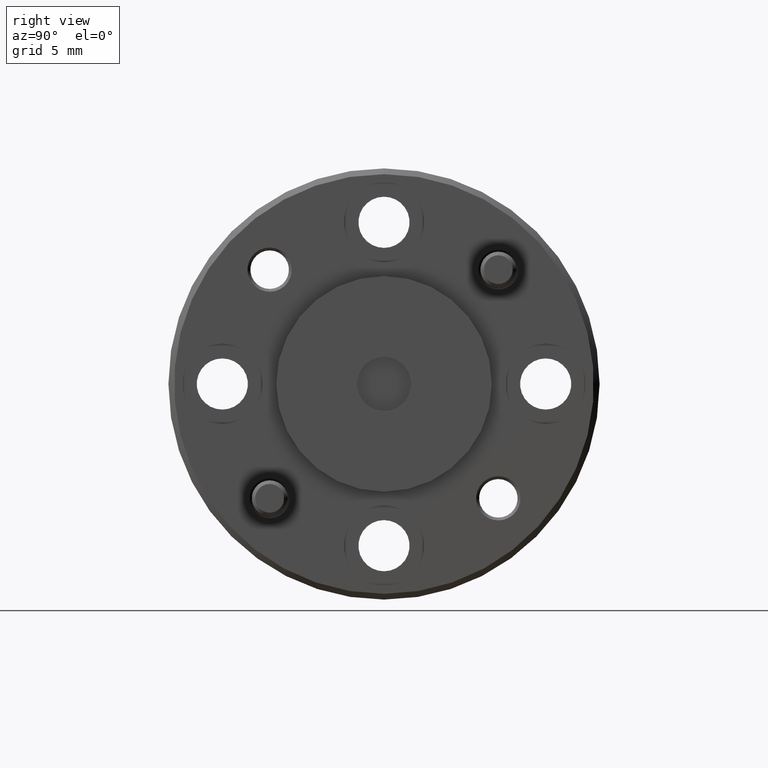
[diagram: clean part render]
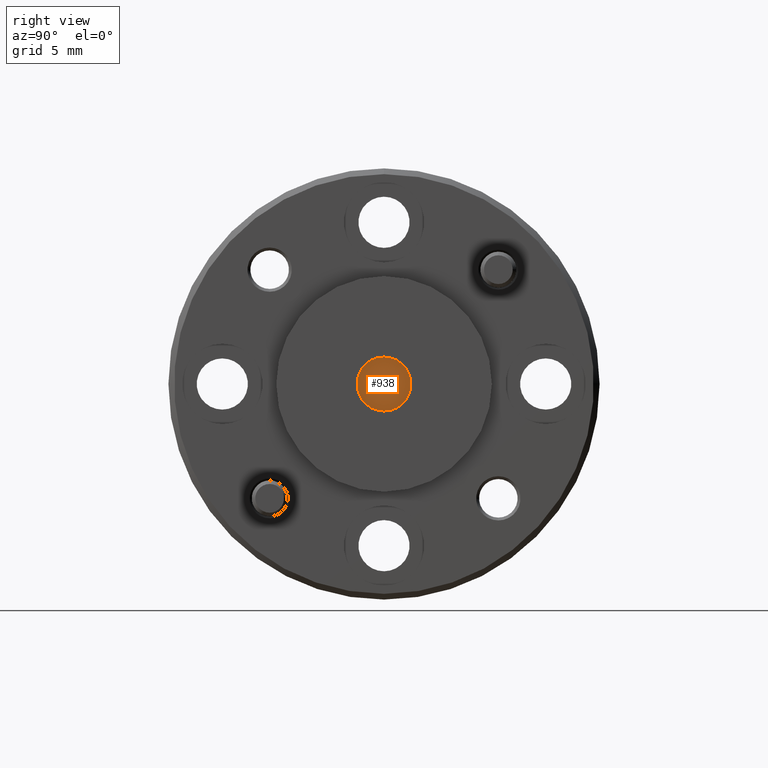
[diagram: same view with one face highlighted and labeled with its STEP entity id]
A machine part, right view. The second image highlights one B-rep face of the part: STEP entity #938.
In plain terms, the highlighted planar face has unit normal (1, 0, -0).
Its self-contained STEP definition (entity closure, byte-faithful):
#46 = CIRCLE ( 'NONE', #242, 0.04700000000000000700 ) ;
#84 = EDGE_CURVE ( 'NONE', #1123, #1273, #46, .T. ) ;
#242 = AXIS2_PLACEMENT_3D ( 'NONE', #1311, #668, #670 ) ;
#249 = DIRECTION ( 'NONE',  ( -0.0000000000000000000, 0.0000000000000000000, -1.000000000000000000 ) ) ;
#284 = CARTESIAN_POINT ( 'NONE',  ( 0.3705151396269433200, 0.4701054730334652800, 0.5161474666369300100 ) ) ;
#359 = DIRECTION ( 'NONE',  ( 1.000000000000000000, -0.0000000000000000000, -0.0000000000000000000 ) ) ;
#387 = ORIENTED_EDGE ( 'NONE', *, *, #1320, .T. ) ;
#569 = PLANE ( 'NONE',  #2011 ) ;
#668 = DIRECTION ( 'NONE',  ( 1.000000000000000000, -0.0000000000000000000, -0.0000000000000000000 ) ) ;
#670 = DIRECTION ( 'NONE',  ( 0.0000000000000000000, 0.0000000000000000000, -1.000000000000000000 ) ) ;
#938 = ADVANCED_FACE ( 'NONE', ( #1494 ), #569, .T. ) ;
#981 = CIRCLE ( 'NONE', #1528, 0.04700000000000000700 ) ;
#1123 = VERTEX_POINT ( 'NONE', #284 ) ;
#1155 = DIRECTION ( 'NONE',  ( 0.0000000000000000000, 0.0000000000000000000, -1.000000000000000000 ) ) ;
#1273 = VERTEX_POINT ( 'NONE', #1793 ) ;
#1311 = CARTESIAN_POINT ( 'NONE',  ( 0.3705151396269433200, 0.4701054730334652800, 0.4691474666369300800 ) ) ;
#1320 = EDGE_CURVE ( 'NONE', #1273, #1123, #981, .T. ) ;
#1409 = DIRECTION ( 'NONE',  ( 1.000000000000000000, 0.0000000000000000000, -0.0000000000000000000 ) ) ;
#1494 = FACE_OUTER_BOUND ( 'NONE', #1687, .T. ) ;
#1528 = AXIS2_PLACEMENT_3D ( 'NONE', #1628, #359, #1155 ) ;
#1628 = CARTESIAN_POINT ( 'NONE',  ( 0.3705151396269433200, 0.4701054730334652800, 0.4691474666369300800 ) ) ;
#1682 = CARTESIAN_POINT ( 'NONE',  ( 0.3705151396269433200, 0.5171054730334653200, 0.4691474666369300800 ) ) ;
#1687 = EDGE_LOOP ( 'NONE', ( #387, #1820 ) ) ;
#1793 = CARTESIAN_POINT ( 'NONE',  ( 0.3705151396269433200, 0.4701054730334652800, 0.4221474666369300400 ) ) ;
#1820 = ORIENTED_EDGE ( 'NONE', *, *, #84, .T. ) ;
#2011 = AXIS2_PLACEMENT_3D ( 'NONE', #1682, #1409, #249 ) ;